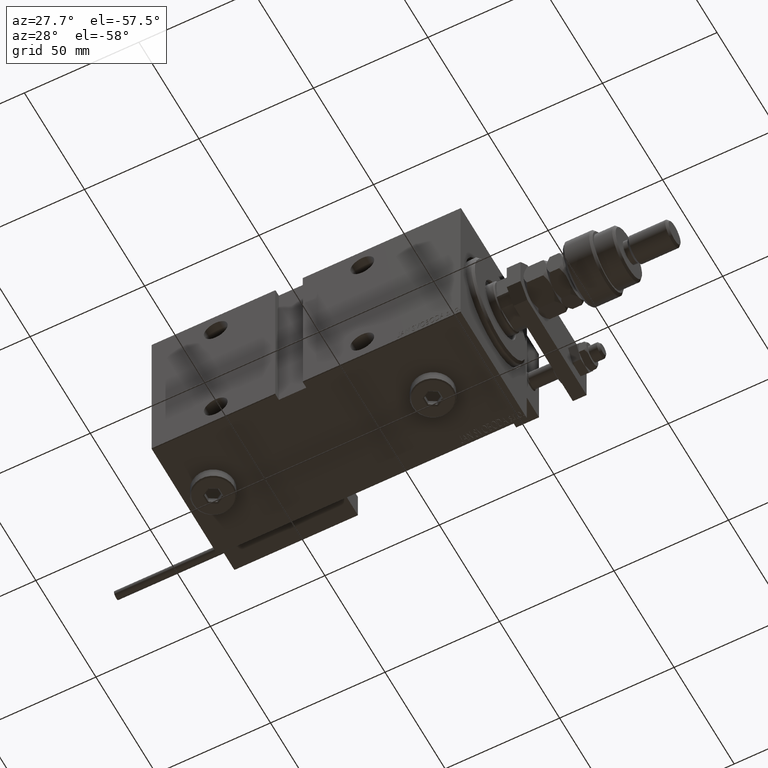
[diagram: clean part render]
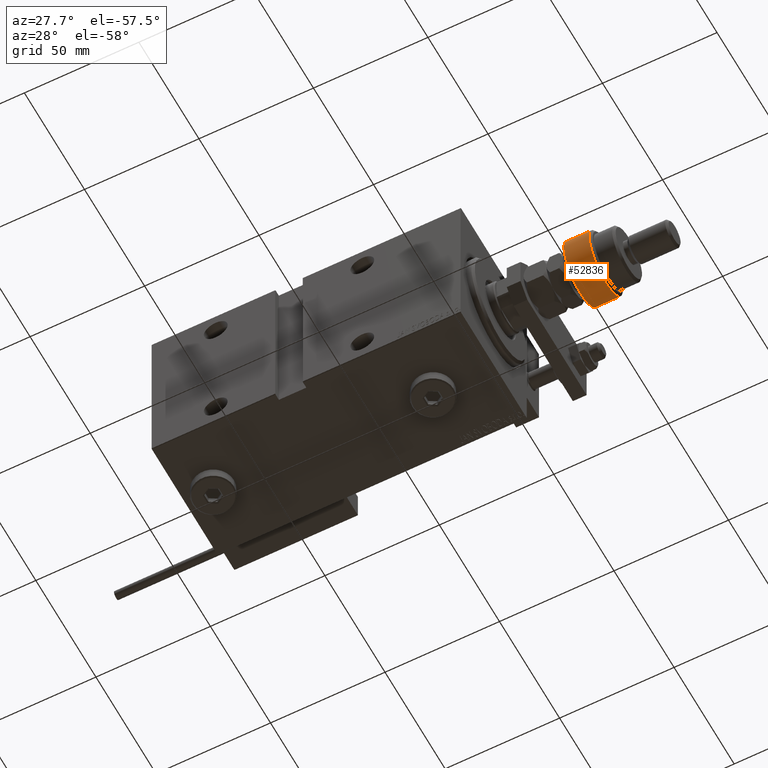
[diagram: same view with one face highlighted and labeled with its STEP entity id]
A machine part, auxiliary view. The second image highlights one B-rep face of the part: STEP entity #52836.
In plain terms, the highlighted cylindrical surface (edge-blend (fillet) strip) has radius 14 mm, axis along (-1, -0, 0).
Its self-contained STEP definition (entity closure, byte-faithful):
#1324 = AXIS2_PLACEMENT_3D ( 'NONE', #24510, #28343, #3454 ) ;
#1416 = DIRECTION ( 'NONE',  ( -1.000000000000000000, 0.000000000000000000, 0.000000000000000000 ) ) ;
#3454 = DIRECTION ( 'NONE',  ( 1.000000000000000000, 0.000000000000000000, 0.000000000000000000 ) ) ;
#5446 = VERTEX_POINT ( 'NONE', #18619 ) ;
#5521 = CARTESIAN_POINT ( 'NONE',  ( 0.000000000000000000, 0.000000000000000000, 13.00000000000000000 ) ) ;
#8570 = DIRECTION ( 'NONE',  ( -0.000000000000000000, -0.000000000000000000, 1.000000000000000000 ) ) ;
#9706 = CIRCLE ( 'NONE', #13224, 14.00000000000000000 ) ;
#10554 = ORIENTED_EDGE ( 'NONE', *, *, #20642, .T. ) ;
#11474 = CARTESIAN_POINT ( 'NONE',  ( -12.64911064067351809, 6.000000000000000000, 1.000000000000021760 ) ) ;
#11920 = CARTESIAN_POINT ( 'NONE',  ( 0.000000000000000000, 0.000000000000000000, 12.00000000000002842 ) ) ;
#13224 = AXIS2_PLACEMENT_3D ( 'NONE', #11920, #36811, #15480 ) ;
#13966 = DIRECTION ( 'NONE',  ( -0.000000000000000000, -0.000000000000000000, -1.000000000000000000 ) ) ;
#15041 = CARTESIAN_POINT ( 'NONE',  ( -12.64911064067351809, 6.000000000000000000, 12.00000000000002842 ) ) ;
#15480 = DIRECTION ( 'NONE',  ( 1.000000000000000000, 0.000000000000000000, 0.000000000000000000 ) ) ;
#18619 = CARTESIAN_POINT ( 'NONE',  ( 14.00000000000000000, 0.000000000000000000, 1.000000000000018208 ) ) ;
#18873 = LINE ( 'NONE', #51410, #52802 ) ;
#19392 = EDGE_CURVE ( 'NONE', #5446, #35366, #50294, .T. ) ;
#20642 = EDGE_CURVE ( 'NONE', #38283, #30347, #30794, .T. ) ;
#24510 = CARTESIAN_POINT ( 'NONE',  ( 0.000000000000000000, 0.000000000000000000, 1.000000000000018208 ) ) ;
#24668 = VERTEX_POINT ( 'NONE', #15041 ) ;
#25613 = ORIENTED_EDGE ( 'NONE', *, *, #42027, .T. ) ;
#26449 = EDGE_CURVE ( 'NONE', #24668, #38283, #9706, .T. ) ;
#26956 = DIRECTION ( 'NONE',  ( -0.000000000000000000, -0.000000000000000000, -1.000000000000000000 ) ) ;
#28343 = DIRECTION ( 'NONE',  ( -0.000000000000000000, -0.000000000000000000, 1.000000000000000000 ) ) ;
#28511 = AXIS2_PLACEMENT_3D ( 'NONE', #51199, #8570, #42997 ) ;
#30347 = VERTEX_POINT ( 'NONE', #41542 ) ;
#30794 = LINE ( 'NONE', #42804, #51243 ) ;
#30970 = FACE_OUTER_BOUND ( 'NONE', #45411, .T. ) ;
#31749 = ORIENTED_EDGE ( 'NONE', *, *, #19392, .T. ) ;
#35366 = VERTEX_POINT ( 'NONE', #11474 ) ;
#36811 = DIRECTION ( 'NONE',  ( 0.000000000000000000, 0.000000000000000000, -1.000000000000000000 ) ) ;
#38283 = VERTEX_POINT ( 'NONE', #52235 ) ;
#40040 = ORIENTED_EDGE ( 'NONE', *, *, #26449, .T. ) ;
#41404 = EDGE_CURVE ( 'NONE', #24668, #35366, #18873, .T. ) ;
#41542 = CARTESIAN_POINT ( 'NONE',  ( -12.64911064067351809, -5.999999999999999112, 1.000000000000021760 ) ) ;
#42027 = EDGE_CURVE ( 'NONE', #30347, #5446, #48470, .T. ) ;
#42804 = CARTESIAN_POINT ( 'NONE',  ( -12.64911064067351809, -5.999999999999999112, 14.50000000000000000 ) ) ;
#42979 = DIRECTION ( 'NONE',  ( -0.000000000000000000, -0.000000000000000000, -1.000000000000000000 ) ) ;
#42997 = DIRECTION ( 'NONE',  ( 1.000000000000000000, 0.000000000000000000, 0.000000000000000000 ) ) ;
#45411 = EDGE_LOOP ( 'NONE', ( #50881, #40040, #10554, #25613, #31749 ) ) ;
#46041 = AXIS2_PLACEMENT_3D ( 'NONE', #5521, #42979, #1416 ) ;
#48470 = CIRCLE ( 'NONE', #1324, 14.00000000000000000 ) ;
#50294 = CIRCLE ( 'NONE', #28511, 14.00000000000000000 ) ;
#50881 = ORIENTED_EDGE ( 'NONE', *, *, #41404, .F. ) ;
#51199 = CARTESIAN_POINT ( 'NONE',  ( 0.000000000000000000, 0.000000000000000000, 1.000000000000018208 ) ) ;
#51243 = VECTOR ( 'NONE', #26956, 1000.000000000000000 ) ;
#51410 = CARTESIAN_POINT ( 'NONE',  ( -12.64911064067351809, 6.000000000000000000, 14.50000000000000000 ) ) ;
#51984 = CYLINDRICAL_SURFACE ( 'NONE', #46041, 14.00000000000000000 ) ;
#52235 = CARTESIAN_POINT ( 'NONE',  ( -12.64911064067351809, -5.999999999999999112, 12.00000000000002842 ) ) ;
#52802 = VECTOR ( 'NONE', #13966, 1000.000000000000000 ) ;
#52836 = ADVANCED_FACE ( 'NONE', ( #30970 ), #51984, .T. ) ;